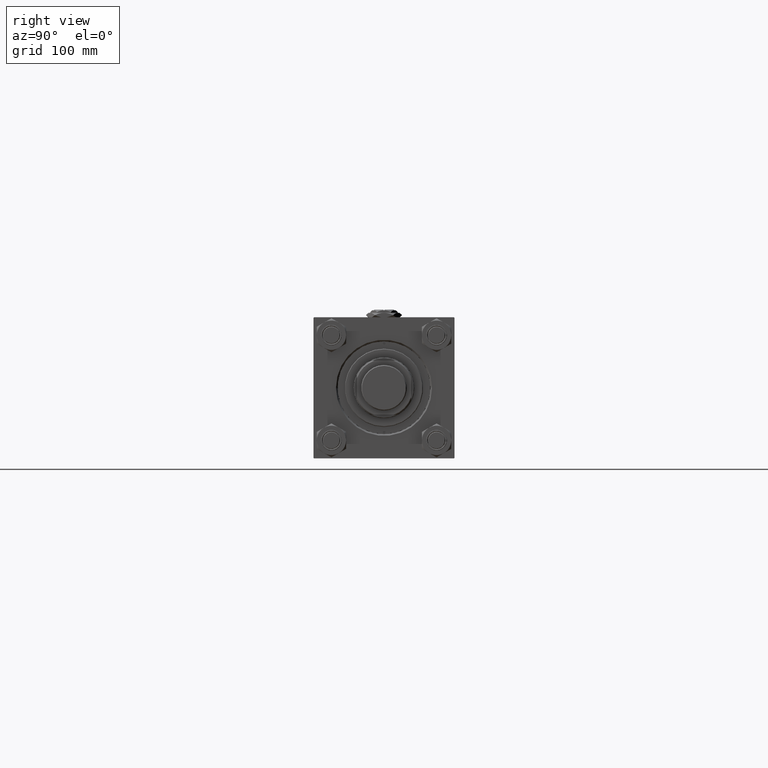
[diagram: clean part render]
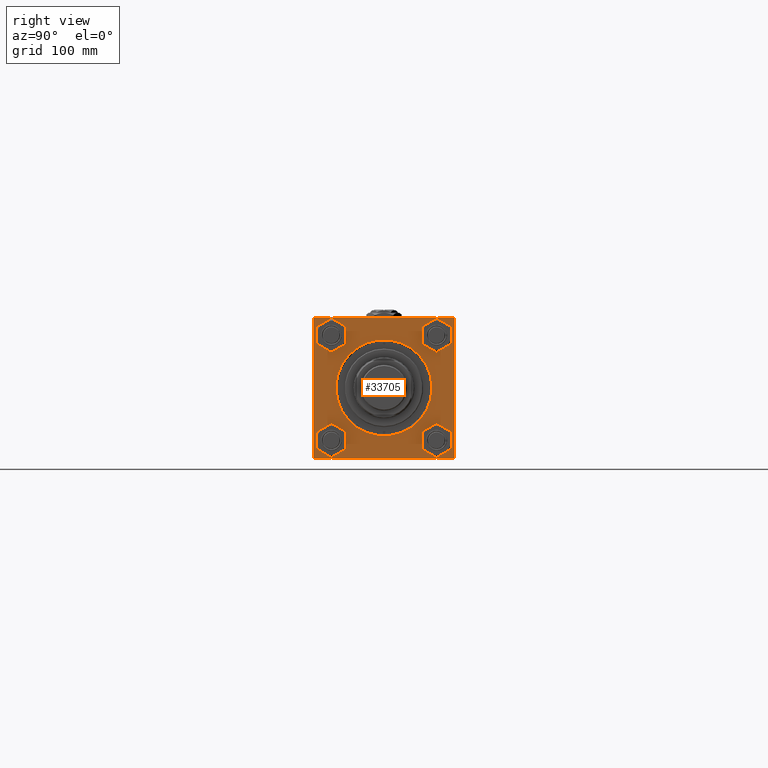
[diagram: same view with one face highlighted and labeled with its STEP entity id]
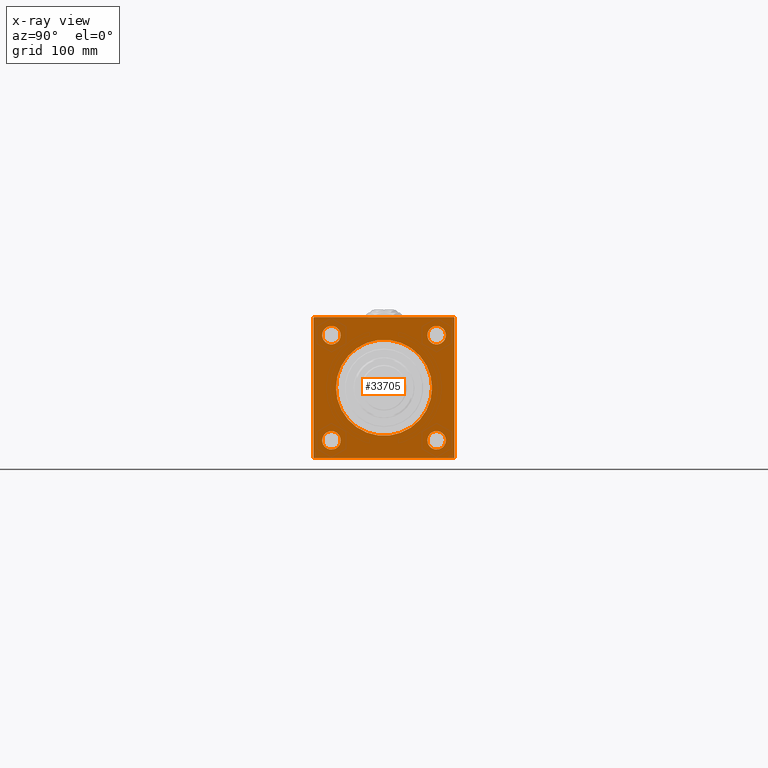
[diagram: x-ray of the same camera — body ghosted, the highlighted face saturated]
A machine part, right view. The second image highlights one B-rep face of the part: STEP entity #33705.
The next image is the same camera in x-ray: the body ghosted, the highlighted face saturated — about 0% of this face is hidden behind the body in this view.
In plain terms, the highlighted planar face has unit normal (-1, 0, 0).
Its self-contained STEP definition (entity closure, byte-faithful):
#417 = CARTESIAN_POINT ( 'NONE',  ( 443.0000000000000000, 48.45000000000000995, 39.95000000000000284 ) ) ;
#592 = DIRECTION ( 'NONE',  ( 0.000000000000000000, 0.000000000000000000, 1.000000000000000000 ) ) ;
#719 = CARTESIAN_POINT ( 'NONE',  ( 443.0000000000000000, 48.45000000000000995, -48.45000000000001705 ) ) ;
#778 = CIRCLE ( 'NONE', #37712, 8.500000000000007105 ) ;
#831 = CARTESIAN_POINT ( 'NONE',  ( 443.0000000000000000, 64.49999999999997158, 65.00000000000001421 ) ) ;
#1006 = AXIS2_PLACEMENT_3D ( 'NONE', #7432, #23821, #25691 ) ;
#1073 = DIRECTION ( 'NONE',  ( -1.000000000000000000, 0.000000000000000000, -0.000000000000000000 ) ) ;
#1680 = DIRECTION ( 'NONE',  ( 0.000000000000000000, -1.000000000000000000, -1.067522139062650425E-16 ) ) ;
#1991 = CIRCLE ( 'NONE', #25174, 44.25000000000012079 ) ;
#2201 = FACE_BOUND ( 'NONE', #8721, .T. ) ;
#2203 = DIRECTION ( 'NONE',  ( -1.000000000000000000, 0.000000000000000000, -0.000000000000000000 ) ) ;
#2248 = CARTESIAN_POINT ( 'NONE',  ( 443.0000000000000000, 48.45000000000000995, 48.45000000000001705 ) ) ;
#2349 = DIRECTION ( 'NONE',  ( 0.000000000000000000, 0.000000000000000000, -1.000000000000000000 ) ) ;
#2818 = EDGE_CURVE ( 'NONE', #21848, #22223, #34482, .T. ) ;
#2870 = LINE ( 'NONE', #18696, #33521 ) ;
#2896 = CARTESIAN_POINT ( 'NONE',  ( 443.0000000000000000, 65.00000000000002842, 65.00000000000001421 ) ) ;
#3464 = EDGE_LOOP ( 'NONE', ( #15182, #37702 ) ) ;
#4007 = LINE ( 'NONE', #37349, #17784 ) ;
#4053 = DIRECTION ( 'NONE',  ( 0.000000000000000000, 0.000000000000000000, 1.000000000000000000 ) ) ;
#4454 = EDGE_CURVE ( 'NONE', #21192, #12746, #52362, .T. ) ;
#4481 = DIRECTION ( 'NONE',  ( 0.000000000000000000, 0.000000000000000000, 1.000000000000000000 ) ) ;
#5125 = CARTESIAN_POINT ( 'NONE',  ( 443.0000000000000000, 65.00000000000002842, -64.99999999999998579 ) ) ;
#5354 = CARTESIAN_POINT ( 'NONE',  ( 443.0000000000000000, -48.45000000000001705, -56.95000000000002416 ) ) ;
#5921 = AXIS2_PLACEMENT_3D ( 'NONE', #25783, #50532, #8127 ) ;
#6229 = PLANE ( 'NONE',  #12817 ) ;
#6244 = CARTESIAN_POINT ( 'NONE',  ( 443.0000000000000000, -48.44999999999998153, 56.94999999999999574 ) ) ;
#6482 = EDGE_LOOP ( 'NONE', ( #24329, #15779, #18011, #49632, #33016, #39619, #44718, #15457 ) ) ;
#6693 = CARTESIAN_POINT ( 'NONE',  ( 443.0000000000000000, 0.000000000000000000, 0.000000000000000000 ) ) ;
#6722 = VERTEX_POINT ( 'NONE', #6244 ) ;
#6766 = DIRECTION ( 'NONE',  ( -1.000000000000000000, 0.000000000000000000, -0.000000000000000000 ) ) ;
#7432 = CARTESIAN_POINT ( 'NONE',  ( 443.0000000000000000, -48.45000000000001705, -48.45000000000001705 ) ) ;
#7907 = CARTESIAN_POINT ( 'NONE',  ( 443.0000000000000000, 48.45000000000000995, -56.95000000000002416 ) ) ;
#8127 = DIRECTION ( 'NONE',  ( 0.000000000000000000, 0.000000000000000000, 1.000000000000000000 ) ) ;
#8336 = DIRECTION ( 'NONE',  ( -1.000000000000000000, 0.000000000000000000, -0.000000000000000000 ) ) ;
#8720 = CIRCLE ( 'NONE', #47374, 8.500000000000007105 ) ;
#8721 = EDGE_LOOP ( 'NONE', ( #19619, #51933 ) ) ;
#8811 = EDGE_CURVE ( 'NONE', #45949, #33193, #44450, .T. ) ;
#8838 = CIRCLE ( 'NONE', #19978, 8.500000000000007105 ) ;
#9857 = DIRECTION ( 'NONE',  ( -1.000000000000000000, 0.000000000000000000, -0.000000000000000000 ) ) ;
#10252 = FACE_BOUND ( 'NONE', #30139, .T. ) ;
#10322 = ORIENTED_EDGE ( 'NONE', *, *, #42096, .T. ) ;
#10552 = CARTESIAN_POINT ( 'NONE',  ( 443.0000000000000000, 48.45000000000000995, 56.95000000000002416 ) ) ;
#11153 = EDGE_LOOP ( 'NONE', ( #43666, #17900 ) ) ;
#11269 = CIRCLE ( 'NONE', #1006, 8.500000000000007105 ) ;
#11330 = CARTESIAN_POINT ( 'NONE',  ( 443.0000000000000000, -48.45000000000001705, -39.95000000000000284 ) ) ;
#11619 = DIRECTION ( 'NONE',  ( 0.000000000000000000, 0.000000000000000000, -1.000000000000000000 ) ) ;
#11651 = EDGE_CURVE ( 'NONE', #22223, #45949, #4007, .T. ) ;
#12013 = VERTEX_POINT ( 'NONE', #21912 ) ;
#12371 = AXIS2_PLACEMENT_3D ( 'NONE', #719, #33249, #4481 ) ;
#12746 = VERTEX_POINT ( 'NONE', #21982 ) ;
#12817 = AXIS2_PLACEMENT_3D ( 'NONE', #19636, #6766, #22612 ) ;
#13040 = AXIS2_PLACEMENT_3D ( 'NONE', #6693, #36521, #40047 ) ;
#13345 = EDGE_CURVE ( 'NONE', #12013, #38115, #14441, .T. ) ;
#13606 = CIRCLE ( 'NONE', #5921, 8.500000000000007105 ) ;
#13675 = CARTESIAN_POINT ( 'NONE',  ( 443.0000000000000000, 64.49999999999997158, -64.99999999999998579 ) ) ;
#13903 = CIRCLE ( 'NONE', #29370, 8.500000000000007105 ) ;
#14220 = VERTEX_POINT ( 'NONE', #5354 ) ;
#14441 = CIRCLE ( 'NONE', #47100, 8.500000000000007105 ) ;
#14592 = DIRECTION ( 'NONE',  ( -1.000000000000000000, 0.000000000000000000, -0.000000000000000000 ) ) ;
#14808 = FACE_OUTER_BOUND ( 'NONE', #6482, .T. ) ;
#15182 = ORIENTED_EDGE ( 'NONE', *, *, #51666, .T. ) ;
#15457 = ORIENTED_EDGE ( 'NONE', *, *, #11651, .T. ) ;
#15779 = ORIENTED_EDGE ( 'NONE', *, *, #36663, .T. ) ;
#16664 = CARTESIAN_POINT ( 'NONE',  ( 443.0000000000000000, -48.44999999999998153, 48.44999999999998863 ) ) ;
#16858 = CARTESIAN_POINT ( 'NONE',  ( 443.0000000000000000, -64.50000000000002842, 65.00000000000000000 ) ) ;
#17149 = VERTEX_POINT ( 'NONE', #417 ) ;
#17784 = VECTOR ( 'NONE', #32247, 1000.000000000000114 ) ;
#17812 = EDGE_CURVE ( 'NONE', #6722, #35761, #778, .T. ) ;
#17900 = ORIENTED_EDGE ( 'NONE', *, *, #49325, .T. ) ;
#18011 = ORIENTED_EDGE ( 'NONE', *, *, #43534, .F. ) ;
#18571 = DIRECTION ( 'NONE',  ( 0.000000000000000000, 0.000000000000000000, 1.000000000000000000 ) ) ;
#18696 = CARTESIAN_POINT ( 'NONE',  ( 443.0000000000000000, 65.00000000000002842, -64.49999999999992895 ) ) ;
#19236 = DIRECTION ( 'NONE',  ( -0.000000000000000000, 0.7071067811865474617, 0.7071067811865474617 ) ) ;
#19407 = VERTEX_POINT ( 'NONE', #13675 ) ;
#19619 = ORIENTED_EDGE ( 'NONE', *, *, #23615, .T. ) ;
#19636 = CARTESIAN_POINT ( 'NONE',  ( 443.0000000000000000, 0.000000000000000000, 0.000000000000000000 ) ) ;
#19978 = AXIS2_PLACEMENT_3D ( 'NONE', #23987, #29079, #592 ) ;
#20519 = VECTOR ( 'NONE', #32244, 1000.000000000000000 ) ;
#20742 = EDGE_CURVE ( 'NONE', #19407, #12746, #2870, .T. ) ;
#21192 = VERTEX_POINT ( 'NONE', #38996 ) ;
#21793 = VECTOR ( 'NONE', #1680, 1000.000000000000000 ) ;
#21827 = CARTESIAN_POINT ( 'NONE',  ( 443.0000000000000000, 65.00000000000002842, 65.00000000000001421 ) ) ;
#21848 = VERTEX_POINT ( 'NONE', #831 ) ;
#21912 = CARTESIAN_POINT ( 'NONE',  ( 443.0000000000000000, 48.45000000000000995, -39.95000000000000284 ) ) ;
#21982 = CARTESIAN_POINT ( 'NONE',  ( 443.0000000000000000, 65.00000000000002842, -64.49999999999992895 ) ) ;
#22221 = ORIENTED_EDGE ( 'NONE', *, *, #43493, .T. ) ;
#22223 = VERTEX_POINT ( 'NONE', #16858 ) ;
#22612 = DIRECTION ( 'NONE',  ( -0.000000000000000000, 0.000000000000000000, 1.000000000000000000 ) ) ;
#22880 = CARTESIAN_POINT ( 'NONE',  ( 443.0000000000000000, 48.45000000000000995, -48.45000000000001705 ) ) ;
#23615 = EDGE_CURVE ( 'NONE', #14220, #34526, #11269, .T. ) ;
#23821 = DIRECTION ( 'NONE',  ( -1.000000000000000000, 0.000000000000000000, -0.000000000000000000 ) ) ;
#23987 = CARTESIAN_POINT ( 'NONE',  ( 443.0000000000000000, 48.45000000000000995, 48.45000000000001705 ) ) ;
#24097 = VECTOR ( 'NONE', #42257, 1000.000000000000114 ) ;
#24329 = ORIENTED_EDGE ( 'NONE', *, *, #8811, .T. ) ;
#24634 = VERTEX_POINT ( 'NONE', #48980 ) ;
#25174 = AXIS2_PLACEMENT_3D ( 'NONE', #46252, #1073, #38441 ) ;
#25571 = CARTESIAN_POINT ( 'NONE',  ( 443.0000000000000000, 64.49999999999997158, 65.00000000000001421 ) ) ;
#25691 = DIRECTION ( 'NONE',  ( 0.000000000000000000, 0.000000000000000000, 1.000000000000000000 ) ) ;
#25783 = CARTESIAN_POINT ( 'NONE',  ( 443.0000000000000000, -48.45000000000001705, -48.45000000000001705 ) ) ;
#29079 = DIRECTION ( 'NONE',  ( -1.000000000000000000, 0.000000000000000000, -0.000000000000000000 ) ) ;
#29370 = AXIS2_PLACEMENT_3D ( 'NONE', #16664, #8336, #32828 ) ;
#30069 = ORIENTED_EDGE ( 'NONE', *, *, #17812, .T. ) ;
#30139 = EDGE_LOOP ( 'NONE', ( #22221, #30069 ) ) ;
#31013 = DIRECTION ( 'NONE',  ( 0.000000000000000000, 0.000000000000000000, 1.000000000000000000 ) ) ;
#31994 = EDGE_CURVE ( 'NONE', #34526, #14220, #13606, .T. ) ;
#32244 = DIRECTION ( 'NONE',  ( 0.000000000000000000, 0.7071067811865672237, -0.7071067811865279218 ) ) ;
#32247 = DIRECTION ( 'NONE',  ( -0.000000000000000000, -0.7071067811865573427, -0.7071067811865376918 ) ) ;
#32828 = DIRECTION ( 'NONE',  ( 0.000000000000000000, 0.000000000000000000, 1.000000000000000000 ) ) ;
#33016 = ORIENTED_EDGE ( 'NONE', *, *, #4454, .F. ) ;
#33097 = CARTESIAN_POINT ( 'NONE',  ( 443.0000000000000000, -48.44999999999998153, 39.94999999999998153 ) ) ;
#33193 = VERTEX_POINT ( 'NONE', #33494 ) ;
#33249 = DIRECTION ( 'NONE',  ( -1.000000000000000000, 0.000000000000000000, -0.000000000000000000 ) ) ;
#33494 = CARTESIAN_POINT ( 'NONE',  ( 443.0000000000000000, -64.99999999999998579, -64.49999999999997158 ) ) ;
#33521 = VECTOR ( 'NONE', #19236, 1000.000000000000114 ) ;
#33705 = ADVANCED_FACE ( 'NONE', ( #2201, #47114, #39312, #10252, #47909, #14808 ), #6229, .F. ) ;
#33825 = CARTESIAN_POINT ( 'NONE',  ( 443.0000000000000000, -48.44999999999998153, 48.44999999999998863 ) ) ;
#33894 = LINE ( 'NONE', #5125, #44001 ) ;
#34055 = VECTOR ( 'NONE', #11619, 1000.000000000000000 ) ;
#34193 = VERTEX_POINT ( 'NONE', #47989 ) ;
#34482 = LINE ( 'NONE', #21827, #21793 ) ;
#34526 = VERTEX_POINT ( 'NONE', #11330 ) ;
#35326 = EDGE_LOOP ( 'NONE', ( #10322, #42569 ) ) ;
#35505 = CARTESIAN_POINT ( 'NONE',  ( 443.0000000000000000, -64.99999999999998579, 64.50000000000005684 ) ) ;
#35577 = CIRCLE ( 'NONE', #12371, 8.500000000000007105 ) ;
#35761 = VERTEX_POINT ( 'NONE', #33097 ) ;
#36236 = CIRCLE ( 'NONE', #13040, 44.25000000000012079 ) ;
#36521 = DIRECTION ( 'NONE',  ( -1.000000000000000000, 0.000000000000000000, -0.000000000000000000 ) ) ;
#36537 = LINE ( 'NONE', #53210, #20519 ) ;
#36663 = EDGE_CURVE ( 'NONE', #33193, #24634, #36537, .T. ) ;
#37349 = CARTESIAN_POINT ( 'NONE',  ( 443.0000000000000000, -64.99999999999998579, 64.50000000000005684 ) ) ;
#37702 = ORIENTED_EDGE ( 'NONE', *, *, #13345, .T. ) ;
#37712 = AXIS2_PLACEMENT_3D ( 'NONE', #33825, #9857, #4053 ) ;
#37929 = DIRECTION ( 'NONE',  ( 0.000000000000000000, -1.000000000000000000, -2.135044278125300850E-16 ) ) ;
#38115 = VERTEX_POINT ( 'NONE', #7907 ) ;
#38441 = DIRECTION ( 'NONE',  ( 0.000000000000000000, 0.000000000000000000, 1.000000000000000000 ) ) ;
#38996 = CARTESIAN_POINT ( 'NONE',  ( 443.0000000000000000, 65.00000000000002842, 64.49999999999995737 ) ) ;
#39312 = FACE_BOUND ( 'NONE', #35326, .T. ) ;
#39619 = ORIENTED_EDGE ( 'NONE', *, *, #40419, .T. ) ;
#39898 = CARTESIAN_POINT ( 'NONE',  ( 443.0000000000000000, -64.99999999999998579, 65.00000000000000000 ) ) ;
#40047 = DIRECTION ( 'NONE',  ( 0.000000000000000000, 0.000000000000000000, 1.000000000000000000 ) ) ;
#40419 = EDGE_CURVE ( 'NONE', #21192, #21848, #50326, .T. ) ;
#41764 = VERTEX_POINT ( 'NONE', #51790 ) ;
#42096 = EDGE_CURVE ( 'NONE', #17149, #47094, #8720, .T. ) ;
#42257 = DIRECTION ( 'NONE',  ( 0.000000000000000000, -0.7071067811865474617, 0.7071067811865474617 ) ) ;
#42569 = ORIENTED_EDGE ( 'NONE', *, *, #45679, .T. ) ;
#43493 = EDGE_CURVE ( 'NONE', #35761, #6722, #13903, .T. ) ;
#43534 = EDGE_CURVE ( 'NONE', #19407, #24634, #33894, .T. ) ;
#43666 = ORIENTED_EDGE ( 'NONE', *, *, #43722, .T. ) ;
#43722 = EDGE_CURVE ( 'NONE', #34193, #41764, #36236, .T. ) ;
#44001 = VECTOR ( 'NONE', #37929, 1000.000000000000000 ) ;
#44450 = LINE ( 'NONE', #39898, #34055 ) ;
#44718 = ORIENTED_EDGE ( 'NONE', *, *, #2818, .T. ) ;
#45679 = EDGE_CURVE ( 'NONE', #47094, #17149, #8838, .T. ) ;
#45949 = VERTEX_POINT ( 'NONE', #35505 ) ;
#46252 = CARTESIAN_POINT ( 'NONE',  ( 443.0000000000000000, 0.000000000000000000, 0.000000000000000000 ) ) ;
#47094 = VERTEX_POINT ( 'NONE', #10552 ) ;
#47100 = AXIS2_PLACEMENT_3D ( 'NONE', #22880, #2203, #18571 ) ;
#47114 = FACE_BOUND ( 'NONE', #3464, .T. ) ;
#47374 = AXIS2_PLACEMENT_3D ( 'NONE', #2248, #14592, #31013 ) ;
#47909 = FACE_BOUND ( 'NONE', #11153, .T. ) ;
#47989 = CARTESIAN_POINT ( 'NONE',  ( 443.0000000000000000, 0.000000000000000000, -44.25000000000012079 ) ) ;
#48980 = CARTESIAN_POINT ( 'NONE',  ( 443.0000000000000000, -64.49999999999991473, -65.00000000000001421 ) ) ;
#49325 = EDGE_CURVE ( 'NONE', #41764, #34193, #1991, .T. ) ;
#49632 = ORIENTED_EDGE ( 'NONE', *, *, #20742, .T. ) ;
#50229 = VECTOR ( 'NONE', #2349, 1000.000000000000000 ) ;
#50326 = LINE ( 'NONE', #25571, #24097 ) ;
#50532 = DIRECTION ( 'NONE',  ( -1.000000000000000000, 0.000000000000000000, -0.000000000000000000 ) ) ;
#51666 = EDGE_CURVE ( 'NONE', #38115, #12013, #35577, .T. ) ;
#51790 = CARTESIAN_POINT ( 'NONE',  ( 443.0000000000000000, 5.419062086227053183E-15, 44.25000000000012079 ) ) ;
#51933 = ORIENTED_EDGE ( 'NONE', *, *, #31994, .T. ) ;
#52362 = LINE ( 'NONE', #2896, #50229 ) ;
#53210 = CARTESIAN_POINT ( 'NONE',  ( 443.0000000000000000, -64.49999999999991473, -65.00000000000001421 ) ) ;